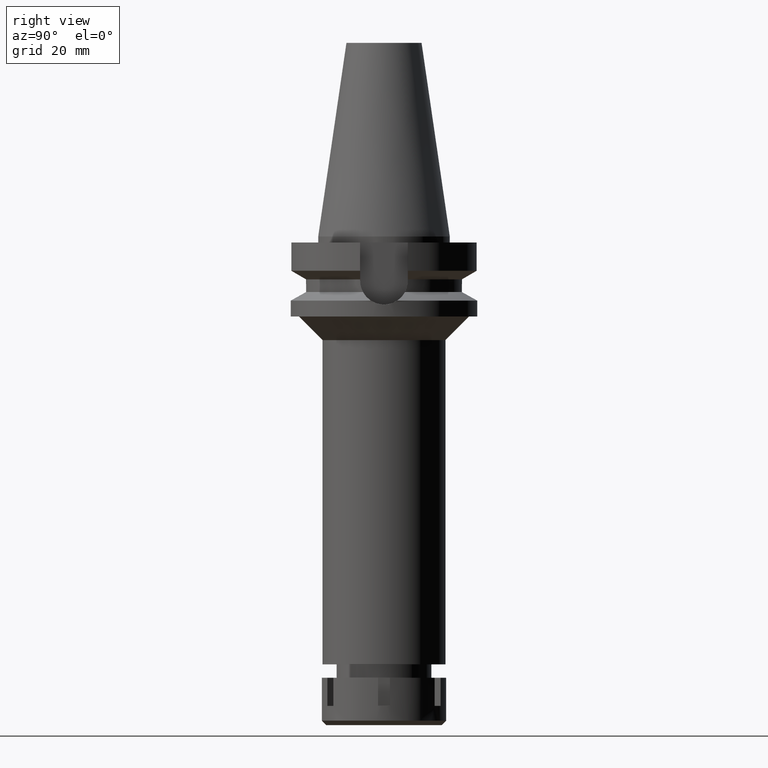
[diagram: clean part render]
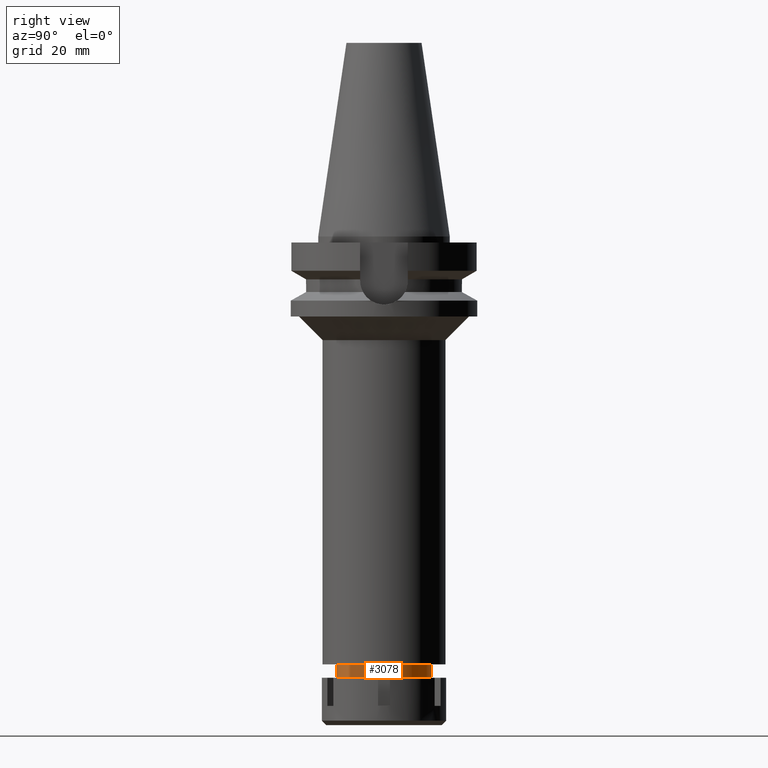
[diagram: same view with one face highlighted and labeled with its STEP entity id]
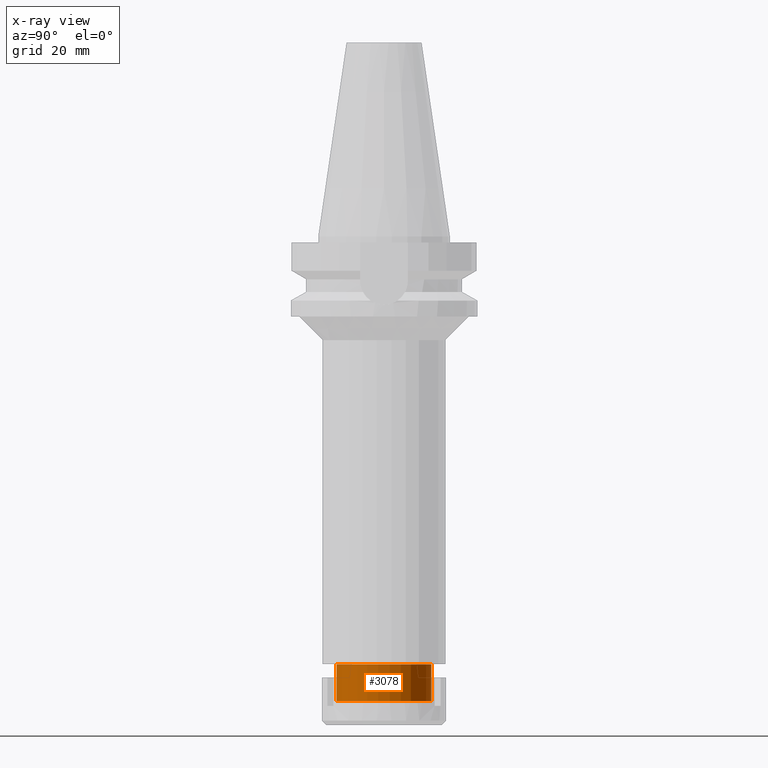
[diagram: x-ray of the same camera — body ghosted, the highlighted face saturated]
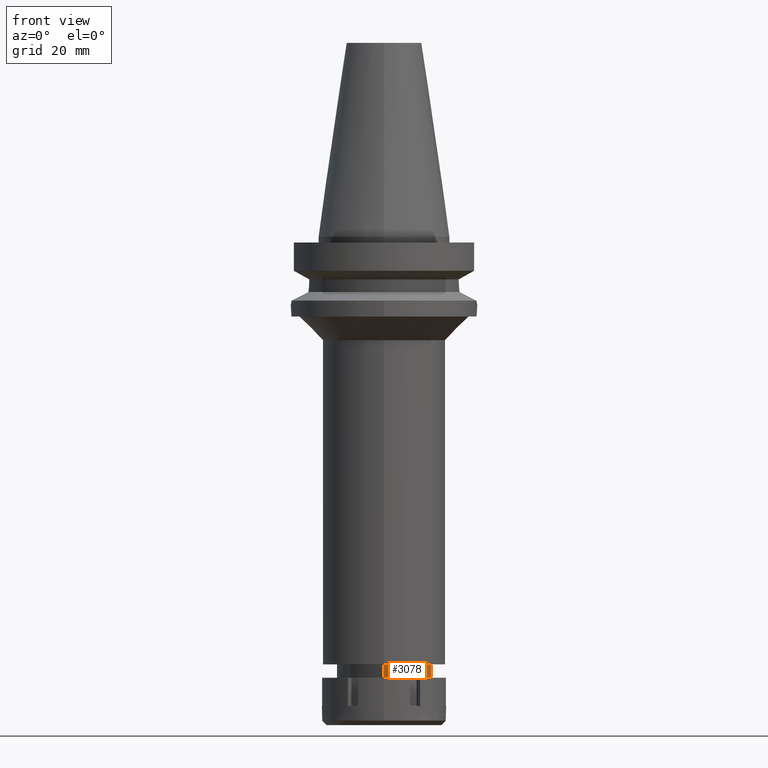
[diagram: same view with one face highlighted and labeled with its STEP entity id]
A machine part, right view. The second image highlights one B-rep face of the part: STEP entity #3078.
The next image is the same camera in x-ray: the body ghosted, the highlighted face saturated — about 0% of this face is hidden behind the body in this view.
A second angle (front view) of the same face is appended — the face is thin or edge-on in the first view.
In plain terms, the highlighted cylindrical surface (partial cylindrical patch) has radius 16 mm, axis along (0, 0, -1).
Its self-contained STEP definition (entity closure, byte-faithful):
#3 = DIRECTION ( 'NONE',  ( 0.0000000000000000000, 0.0000000000000000000, -1.000000000000000000 ) ) ;
#30 = ORIENTED_EDGE ( 'NONE', *, *, #1835, .T. ) ;
#43 = DIRECTION ( 'NONE',  ( 0.0000000000000000000, 1.000000000000000000, 0.0000000000000000000 ) ) ;
#80 = EDGE_CURVE ( 'NONE', #3595, #1475, #611, .T. ) ;
#191 = DIRECTION ( 'NONE',  ( 0.0000000000000000000, 0.0000000000000000000, -1.000000000000000000 ) ) ;
#579 = AXIS2_PLACEMENT_3D ( 'NONE', #883, #3175, #43 ) ;
#599 = CARTESIAN_POINT ( 'NONE',  ( 0.0000000000000000000, -16.00000000000000000, -144.5000000000000000 ) ) ;
#611 = LINE ( 'NONE', #599, #1913 ) ;
#708 = VERTEX_POINT ( 'NONE', #986 ) ;
#727 = CYLINDRICAL_SURFACE ( 'NONE', #1434, 16.00000000000000000 ) ;
#774 = CARTESIAN_POINT ( 'NONE',  ( 0.0000000000000000000, -16.00000000000000000, -157.0000000000000000 ) ) ;
#782 = VERTEX_POINT ( 'NONE', #799 ) ;
#799 = CARTESIAN_POINT ( 'NONE',  ( 0.0000000000000000000, 16.00000000000000000, -144.5000000000000000 ) ) ;
#876 = VECTOR ( 'NONE', #2277, 1000.000000000000000 ) ;
#883 = CARTESIAN_POINT ( 'NONE',  ( 0.0000000000000000000, 2.161746529854999700E-14, -144.5000000000000000 ) ) ;
#986 = CARTESIAN_POINT ( 'NONE',  ( 0.0000000000000000000, 16.00000000000000000, -157.0000000000000000 ) ) ;
#1045 = ORIENTED_EDGE ( 'NONE', *, *, #80, .T. ) ;
#1176 = CARTESIAN_POINT ( 'NONE',  ( 0.0000000000000000000, -16.00000000000000000, -144.5000000000000000 ) ) ;
#1249 = ORIENTED_EDGE ( 'NONE', *, *, #3498, .F. ) ;
#1434 = AXIS2_PLACEMENT_3D ( 'NONE', #2409, #191, #2670 ) ;
#1441 = CARTESIAN_POINT ( 'NONE',  ( 0.0000000000000000000, 2.161746529854999700E-14, -157.0000000000000000 ) ) ;
#1475 = VERTEX_POINT ( 'NONE', #774 ) ;
#1835 = EDGE_CURVE ( 'NONE', #782, #3595, #2507, .T. ) ;
#1888 = EDGE_CURVE ( 'NONE', #1475, #708, #2865, .T. ) ;
#1913 = VECTOR ( 'NONE', #3, 1000.000000000000000 ) ;
#2032 = DIRECTION ( 'NONE',  ( 0.0000000000000000000, -1.000000000000000000, 0.0000000000000000000 ) ) ;
#2213 = AXIS2_PLACEMENT_3D ( 'NONE', #1441, #2598, #2032 ) ;
#2277 = DIRECTION ( 'NONE',  ( 0.0000000000000000000, 0.0000000000000000000, -1.000000000000000000 ) ) ;
#2409 = CARTESIAN_POINT ( 'NONE',  ( 0.0000000000000000000, 2.161746529854999700E-14, 76.52000000000001023 ) ) ;
#2507 = CIRCLE ( 'NONE', #579, 16.00000000000000000 ) ;
#2598 = DIRECTION ( 'NONE',  ( 0.0000000000000000000, 0.0000000000000000000, 1.000000000000000000 ) ) ;
#2670 = DIRECTION ( 'NONE',  ( 0.0000000000000000000, -1.000000000000000000, 0.0000000000000000000 ) ) ;
#2865 = CIRCLE ( 'NONE', #2213, 16.00000000000000000 ) ;
#3063 = EDGE_LOOP ( 'NONE', ( #30, #1045, #3154, #1249 ) ) ;
#3078 = ADVANCED_FACE ( 'NONE', ( #3568 ), #727, .T. ) ;
#3154 = ORIENTED_EDGE ( 'NONE', *, *, #1888, .T. ) ;
#3175 = DIRECTION ( 'NONE',  ( 0.0000000000000000000, 0.0000000000000000000, -1.000000000000000000 ) ) ;
#3376 = CARTESIAN_POINT ( 'NONE',  ( 0.0000000000000000000, 16.00000000000000000, -144.5000000000000000 ) ) ;
#3414 = LINE ( 'NONE', #3376, #876 ) ;
#3498 = EDGE_CURVE ( 'NONE', #782, #708, #3414, .T. ) ;
#3568 = FACE_OUTER_BOUND ( 'NONE', #3063, .T. ) ;
#3595 = VERTEX_POINT ( 'NONE', #1176 ) ;